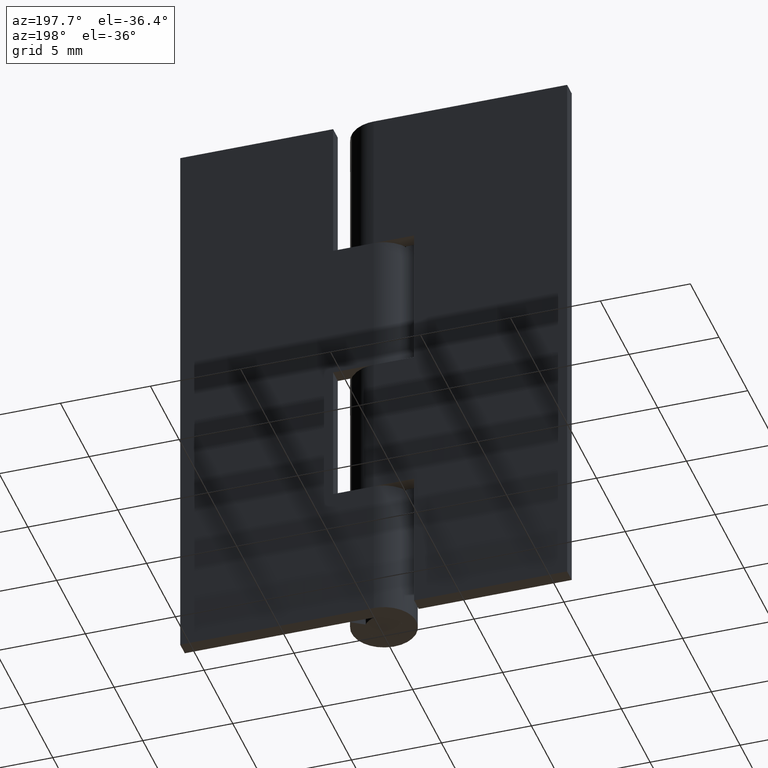
[diagram: clean part render]
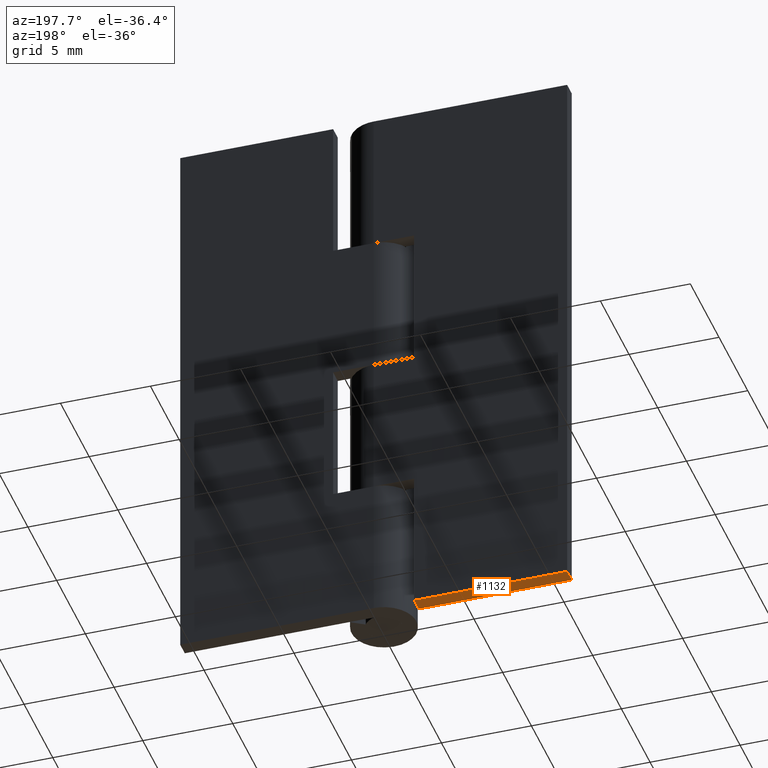
[diagram: same view with one face highlighted and labeled with its STEP entity id]
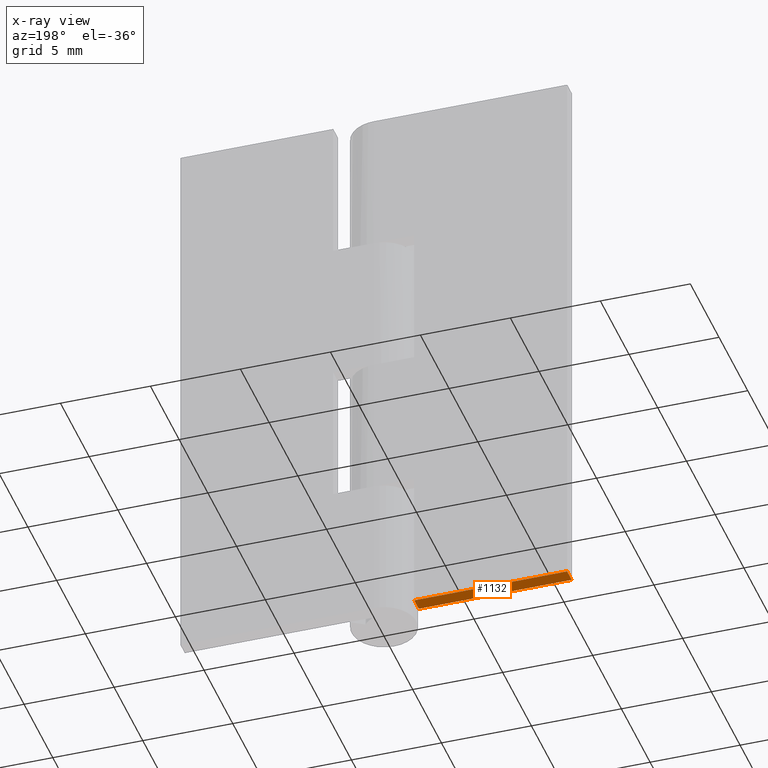
[diagram: x-ray of the same camera — body ghosted, the highlighted face saturated]
A machine part, auxiliary view. The second image highlights one B-rep face of the part: STEP entity #1132.
The next image is the same camera in x-ray: the body ghosted, the highlighted face saturated — about 0% of this face is hidden behind the body in this view.
In plain terms, the highlighted face is a freeform B-spline surface patch.
Its self-contained STEP definition (entity closure, byte-faithful):
#908=CARTESIAN_POINT('',(-2.250000000000000,1.0,0.0));
#909=VERTEX_POINT('',#908);
#915=CARTESIAN_POINT('',(-2.250000000000000,1.800003000000050,0.0));
#916=VERTEX_POINT('',#915);
#917=CARTESIAN_POINT('',(-2.250000000000000,1.0,0.0));
#918=CARTESIAN_POINT('',(-2.250000000000000,1.800003000000050,0.0));
#919=QUASI_UNIFORM_CURVE('',1,(#917,#918),.UNSPECIFIED.,.F.,.U.);
#920=EDGE_CURVE('',#909,#916,#919,.T.);
#1090=CARTESIAN_POINT('',(-10.750000000000000,1.800003000000000,0.0));
#1091=VERTEX_POINT('',#1090);
#1092=CARTESIAN_POINT('',(-10.750000000000000,1.0,0.0));
#1093=VERTEX_POINT('',#1092);
#1094=CARTESIAN_POINT('',(-10.750000000000000,1.800003000000000,0.0));
#1095=CARTESIAN_POINT('',(-10.750000000000000,1.0,0.0));
#1096=QUASI_UNIFORM_CURVE('',1,(#1094,#1095),.UNSPECIFIED.,.F.,.U.);
#1097=EDGE_CURVE('',#1091,#1093,#1096,.T.);
#1113=CARTESIAN_POINT('',(-11.174574983525350,1.839963208378338,0.0));
#1114=CARTESIAN_POINT('',(-1.825424788486884,1.839963208378338,0.0));
#1115=CARTESIAN_POINT('',(-11.174574983525350,0.960039827384633,0.0));
#1116=CARTESIAN_POINT('',(-1.825424788486884,0.960039827384633,0.0));
#1117=B_SPLINE_SURFACE_WITH_KNOTS('',1,1,((#1113,#1115),(#1114,#1116)),.UNSPECIFIED.,.F.,.F.,.U.,(2,2),(2,2),(0.0,9.349150195038467),(0.041708272366598,0.958291690380499),.UNSPECIFIED.);
#1118=ORIENTED_EDGE('',*,*,#920,.F.);
#1119=CARTESIAN_POINT('',(-10.750000000000000,1.0,0.0));
#1120=CARTESIAN_POINT('',(-2.250000000000000,1.0,0.0));
#1121=QUASI_UNIFORM_CURVE('',1,(#1119,#1120),.UNSPECIFIED.,.F.,.U.);
#1122=EDGE_CURVE('',#1093,#909,#1121,.T.);
#1123=ORIENTED_EDGE('',*,*,#1122,.F.);
#1124=ORIENTED_EDGE('',*,*,#1097,.F.);
#1125=CARTESIAN_POINT('',(-2.250000000000000,1.800003000000050,0.0));
#1126=CARTESIAN_POINT('',(-10.750000000000000,1.800003000000000,0.0));
#1127=QUASI_UNIFORM_CURVE('',1,(#1125,#1126),.UNSPECIFIED.,.F.,.U.);
#1128=EDGE_CURVE('',#916,#1091,#1127,.T.);
#1129=ORIENTED_EDGE('',*,*,#1128,.F.);
#1130=EDGE_LOOP('',(#1118,#1123,#1124,#1129));
#1131=FACE_OUTER_BOUND('',#1130,.T.);
#1132=ADVANCED_FACE('',(#1131),#1117,.T.);